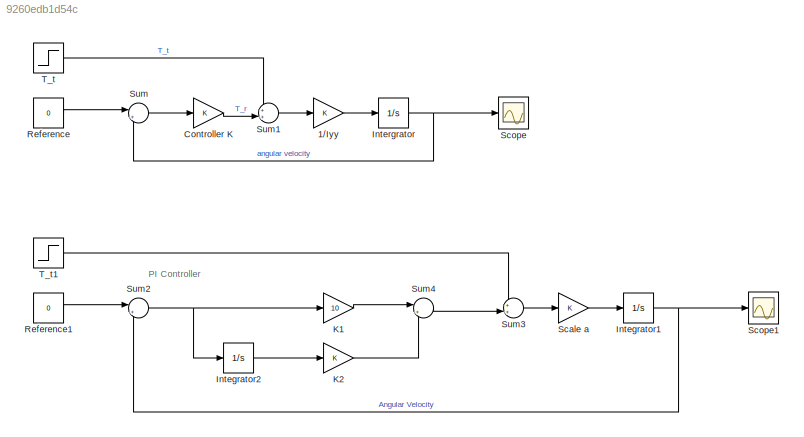
MODEL slx_9260edb1d54c
KIND model
CONFIG AbsTol = auto
CONFIG EnableMultiTasking = off
CONFIG FixedStep = auto
CONFIG MaxStep = auto
CONFIG MinStep = auto
CONFIG RelTol = 1e-3
CONFIG SampleTimeConstraint = Unconstrained
CONFIG SolverName = VariableStepAuto
CONFIG StartTime = 0.0
CONFIG StopTime = 10.0
BLOCK [Gain] 1//Iyy
BLOCK [Gain] Controller K
BLOCK [Integrator] Integrator1
  Ports = [1, 1]
BLOCK [Integrator] Integrator2
  Ports = [1, 1]
BLOCK [Integrator] Intergrator
  Ports = [1, 1]
BLOCK [Gain] K1
  Gain = 10
BLOCK [Gain] K2
BLOCK [Constant] Reference
  Value = 0
BLOCK [Constant] Reference1
  Value = 0
BLOCK [Gain] Scale a
BLOCK [Scope] Scope
  Floating = off
  NumInputPorts = 1
  Ports = [1]
  ScopeSpecificationString = Simulink.scopes.TimeScopeBlockCfg('CurrentConfiguration', extmgr.ConfigurationSet(extmgr.Configuration('Core','General UI',true),extmgr.Configuration('Core','Source UI',true),extmgr.Configuration('Sources','WiredSimulink',true),extmgr.Configuration('Visuals','Time Domain',true,'SerializedDisplays',{struct('MinYLimReal','-0.0625','MaxYLimReal','0.56247','YLabelReal','','MinYLimMag','0.00000','MaxYL...<+1365ch>
BLOCK [Scope] Scope1
  Floating = off
  NumInputPorts = 1
  Ports = [1]
  ScopeSpecificationString = Simulink.scopes.TimeScopeBlockCfg('CurrentConfiguration', extmgr.ConfigurationSet(extmgr.Configuration('Core','General UI',true),extmgr.Configuration('Core','Source UI',true),extmgr.Configuration('Sources','WiredSimulink',true,'DataLoggingVariableName','ScopeData1'),extmgr.Configuration('Visuals','Time Domain',true,'SerializedDisplays',{struct('MinYLimReal','-0.00601','MaxYLimReal','0.05411','YLab...<+1408ch>
BLOCK [Sum] Sum
  Inputs = |+-
  Ports = [2, 1]
BLOCK [Sum] Sum1
  Inputs = ++|
  Ports = [2, 1]
BLOCK [Sum] Sum2
  Inputs = |+-
  Ports = [2, 1]
BLOCK [Sum] Sum3
  Inputs = ++|
  Ports = [2, 1]
BLOCK [Sum] Sum4
  Inputs = |++
  Ports = [2, 1]
BLOCK [Step] T_t
  After = 0.5
  SampleTime = 0
  Time = 0
BLOCK [Step] T_t1
  After = 0.5
  SampleTime = 0
  Time = 0
ANNOTATION (root): PI Controller
LINE 1//Iyy:1 -> Intergrator:1
LINE Controller K:1 -> Sum1:2
NET Integrator1:1 -> Scope1:1, Sum2:2
LINE Integrator2:1 -> K2:1
NET Intergrator:1 -> Scope:1, Sum:2
LINE K1:1 -> Sum4:1
LINE K2:1 -> Sum4:2
LINE Reference1:1 -> Sum2:1
LINE Reference:1 -> Sum:1
LINE Scale a:1 -> Integrator1:1
LINE Sum1:1 -> 1//Iyy:1
NET Sum2:1 -> Integrator2:1, K1:1
LINE Sum3:1 -> Scale a:1
LINE Sum4:1 -> Sum3:2
LINE Sum:1 -> Controller K:1
LINE T_t1:1 -> Sum3:1
LINE T_t:1 -> Sum1:1
note: NET lines group one-source signal fan-out (src -> all destinations, sorted); 1:1 wires keep LINE
